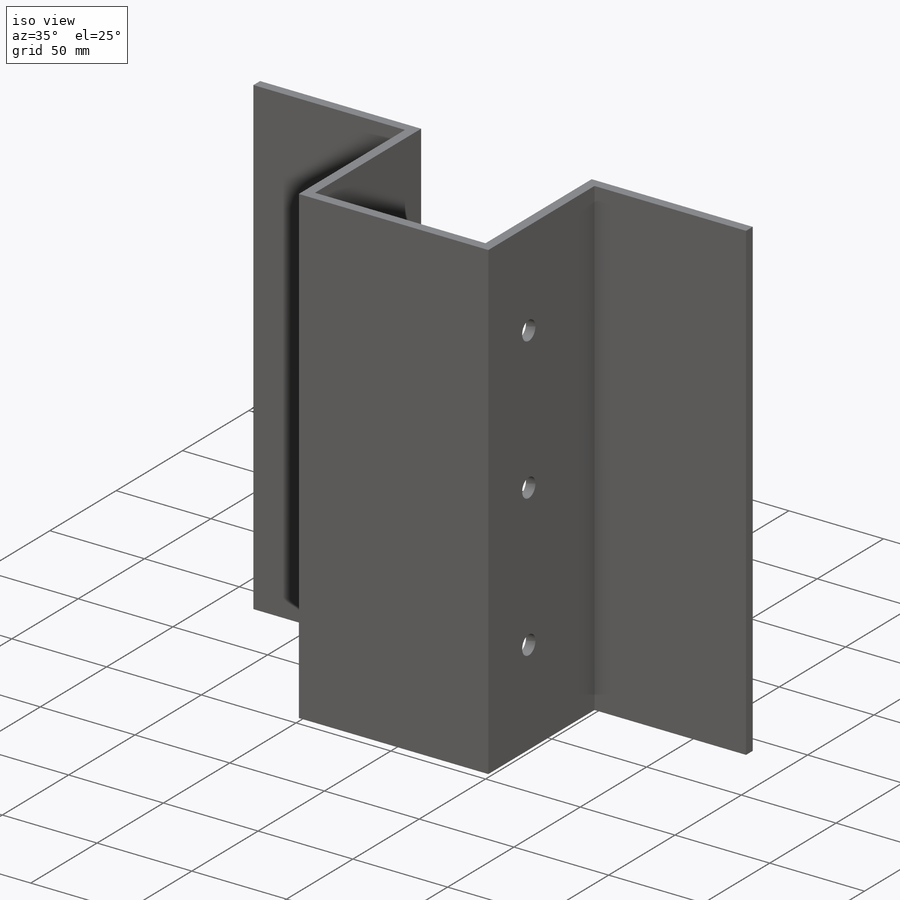
[diagram: iso view]
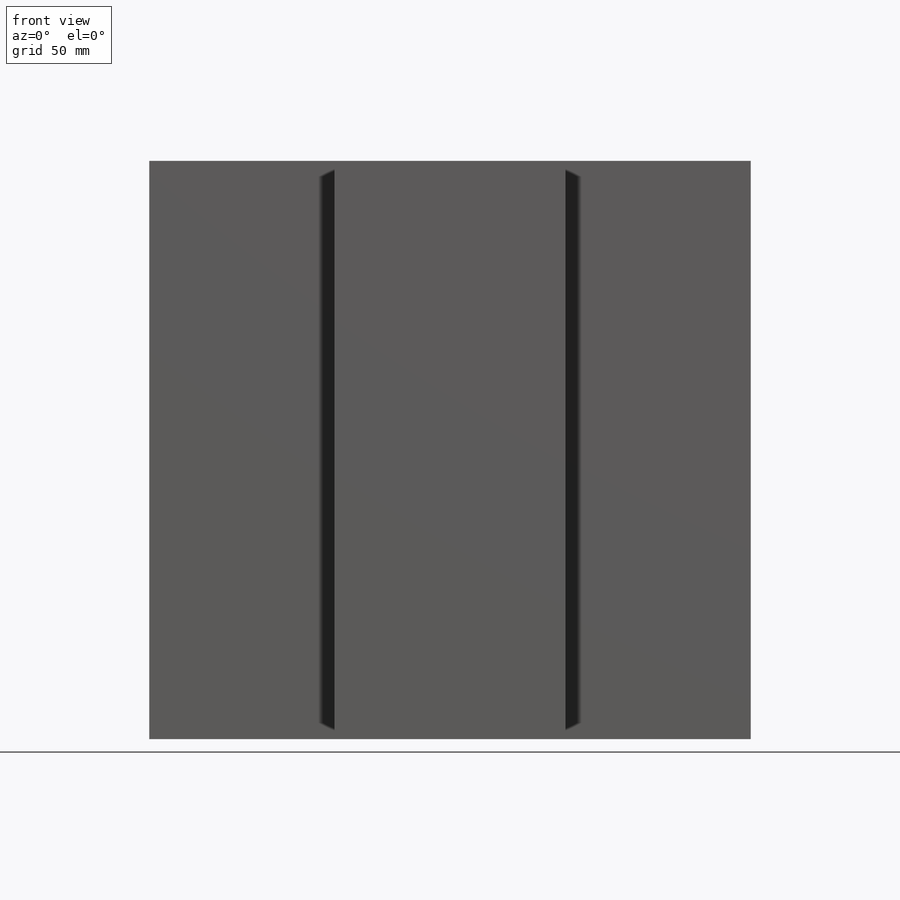
[diagram: front view]
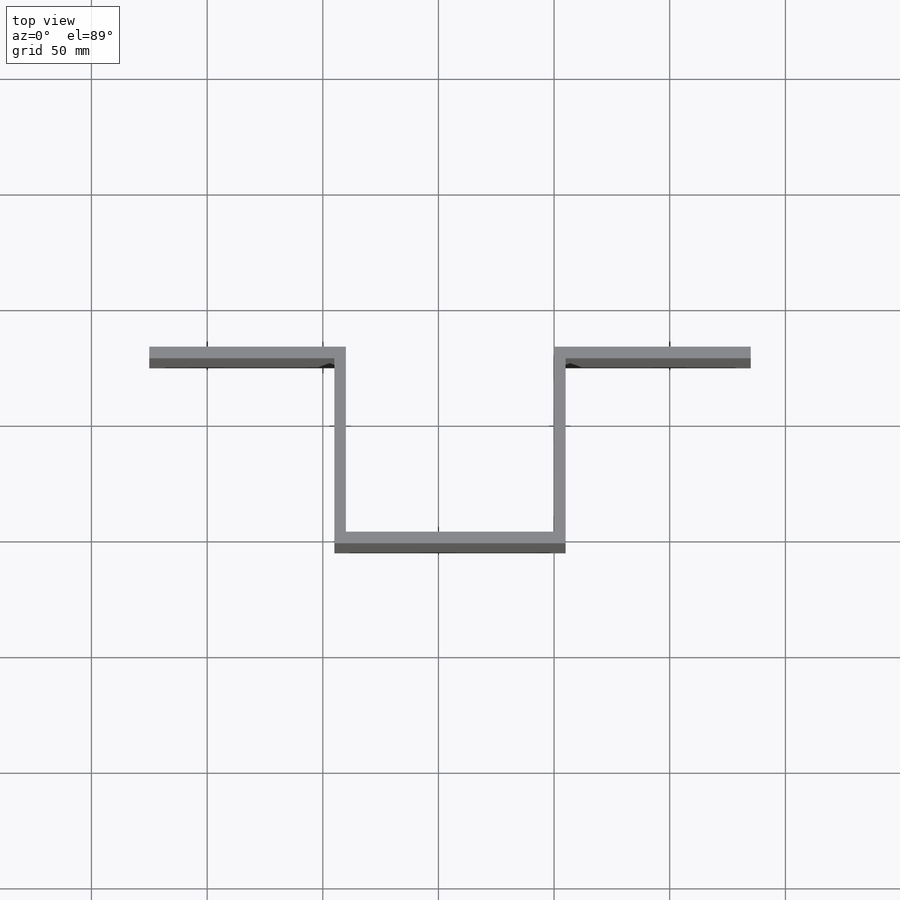
[diagram: top view]
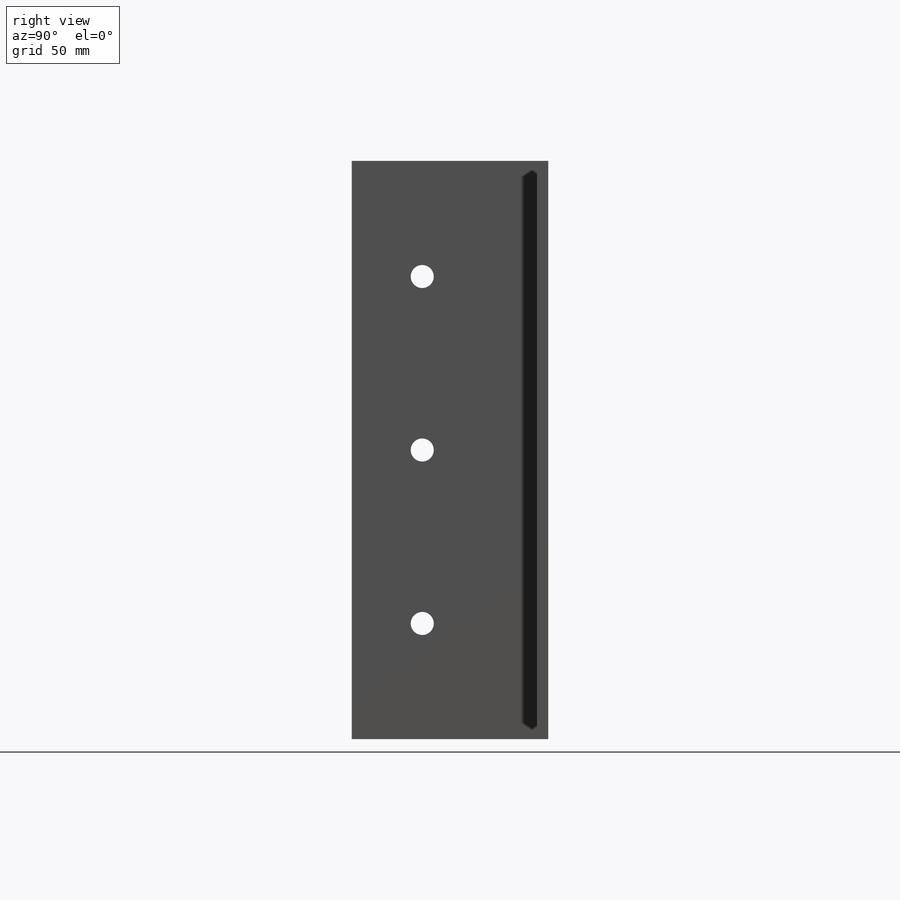
[diagram: right view]
SOLIDWORKS PART (.sldprt)
format: sldprt  version: not decoded by parser v0  size: 180,736 bytes
history: native  units: mm
features: sketch x4, plane x3, extrude x3, material x1, mirror x1, cut_extrude x1 (+9 scaffold rows collapsed)
feature tree (22):
  scaffold x9  (default folders/planes/origin — collapsed)
  material  "Matériau <non spécifié>"
  plane  "Plan de face"
  plane  "Plan de dessus"
  plane  "Plan de droite"
  sketch  "Esquisse1"  dims[D1=250.0mm D2=45.0mm]
  extrude  "Boss.-Extru.1"  Depth=5mm
  sketch  "Esquisse2"  dims[D1=80.0mm]
  extrude  "Boss.-Extru.2"  Depth=5mm
  sketch  "Esquisse4"  dims[D1=250.0mm D2=85.0mm]
  extrude  "Boss.-Extru.4"  Depth=5mm
  mirror  "Symétrie1"
  sketch  "Esquisse5"  dims[c1.D1=10.0mm c1.D2=10.0mm c1.D3=10.0mm c1.D4=10.0mm c1.D5=10.0mm c1.D6=10.0mm c1.D7=10.0mm c1.D8=10.0mm c1.D9=10.0mm c2.D4=125.0mm c2.D5=50.0mm c2.D6=50.0mm c2.D7=30.5mm c2.D8=30.5mm c2.D9=30.5mm]
  cut_extrude  "Enlèv. mat.-Extru.1"  [1 undecoded]
decode coverage: 7 of 9 modeling features carry decoded parameters
note: 1 parameter value undecoded
note: suppression state not decoded; provenance and decode notes live in map.json
